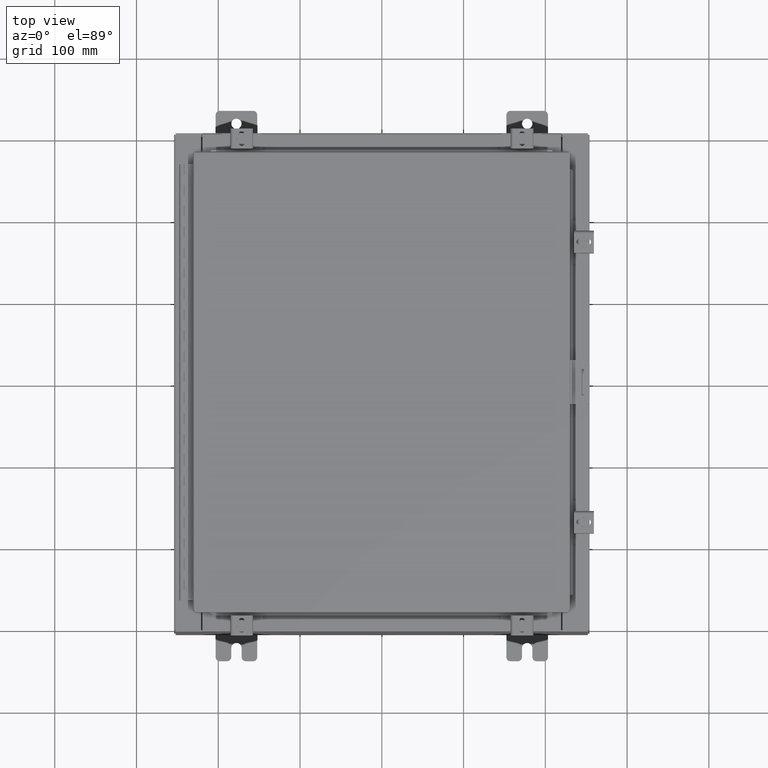
[diagram: clean part render]
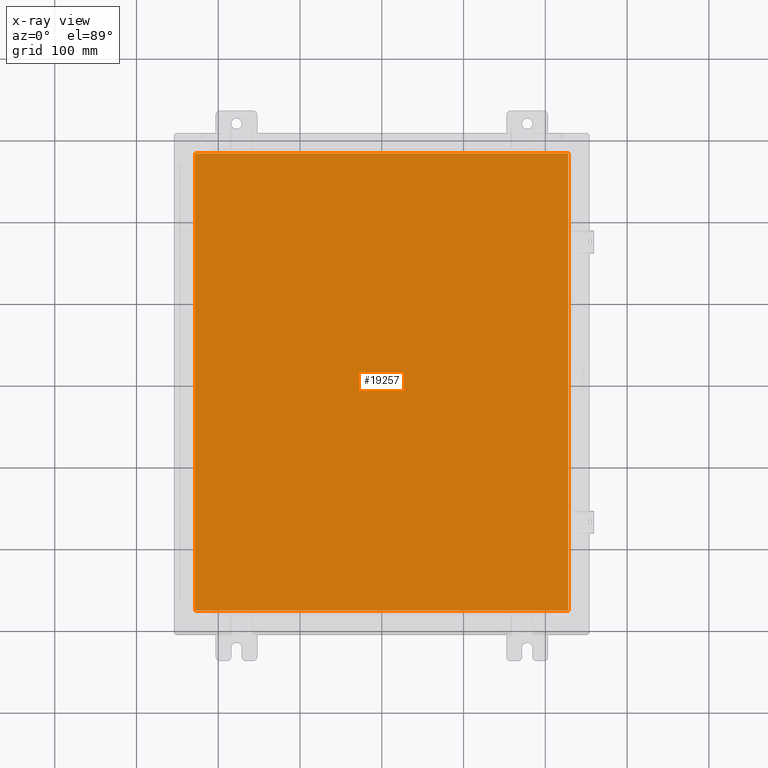
[diagram: x-ray — body ghosted, one internal face saturated and labeled with its STEP entity id]
A machine part, top view, then the same camera in x-ray: the body is ghosted and one INTERNAL B-rep face — a face not visible from any outside direction — is saturated and labeled: STEP entity #19257.
In plain terms, the highlighted planar face has unit normal (0, 0, -1).
Its self-contained STEP definition (entity closure, byte-faithful):
#2543 = PLANE ( 'NONE',  #18289 ) ;
#2843 = VERTEX_POINT ( 'NONE', #10066 ) ;
#3978 = CARTESIAN_POINT ( 'NONE',  ( -8.990299999999999500, 11.00630000000000100, -0.07470000000000019700 ) ) ;
#4054 = ORIENTED_EDGE ( 'NONE', *, *, #28964, .F. ) ;
#5021 = DIRECTION ( 'NONE',  ( -1.000000000000000000, -0.0000000000000000000, -0.0000000000000000000 ) ) ;
#7363 = DIRECTION ( 'NONE',  ( 0.0000000000000000000, 0.0000000000000000000, -1.000000000000000000 ) ) ;
#8384 = VECTOR ( 'NONE', #15093, 39.37007874015748100 ) ;
#8718 = CARTESIAN_POINT ( 'NONE',  ( 8.990299999999997700, 11.00630000000000000, -0.07470000000000000300 ) ) ;
#10066 = CARTESIAN_POINT ( 'NONE',  ( 8.990299999999997700, -11.00630000000000000, -0.07470000000000000300 ) ) ;
#10194 = CARTESIAN_POINT ( 'NONE',  ( -8.990299999999999500, 11.00630000000000000, -0.07470000000000000300 ) ) ;
#10384 = EDGE_CURVE ( 'NONE', #2843, #14885, #23056, .T. ) ;
#11754 = EDGE_CURVE ( 'NONE', #25307, #2843, #31586, .T. ) ;
#12035 = EDGE_LOOP ( 'NONE', ( #13331, #32725, #4054, #20430 ) ) ;
#13322 = EDGE_CURVE ( 'NONE', #14885, #20152, #26292, .T. ) ;
#13331 = ORIENTED_EDGE ( 'NONE', *, *, #10384, .F. ) ;
#14885 = VERTEX_POINT ( 'NONE', #8718 ) ;
#15081 = DIRECTION ( 'NONE',  ( -1.000000000000000000, 0.0000000000000000000, -0.0000000000000000000 ) ) ;
#15093 = DIRECTION ( 'NONE',  ( 0.0000000000000000000, -1.000000000000000000, 0.0000000000000000000 ) ) ;
#18019 = FACE_OUTER_BOUND ( 'NONE', #12035, .T. ) ;
#18289 = AXIS2_PLACEMENT_3D ( 'NONE', #28123, #7363, #15081 ) ;
#19257 = ADVANCED_FACE ( 'NONE', ( #18019 ), #2543, .T. ) ;
#20152 = VERTEX_POINT ( 'NONE', #10194 ) ;
#20430 = ORIENTED_EDGE ( 'NONE', *, *, #13322, .F. ) ;
#21617 = CARTESIAN_POINT ( 'NONE',  ( 8.990299999999997700, -11.00630000000000000, -0.07470000000000019700 ) ) ;
#22622 = VECTOR ( 'NONE', #30478, 39.37007874015748100 ) ;
#23056 = LINE ( 'NONE', #21617, #22622 ) ;
#24029 = VECTOR ( 'NONE', #31147, 39.37007874015748100 ) ;
#25307 = VERTEX_POINT ( 'NONE', #31305 ) ;
#26292 = LINE ( 'NONE', #27731, #31122 ) ;
#27731 = CARTESIAN_POINT ( 'NONE',  ( 8.990299999999999500, 11.00630000000000000, -0.07470000000000019700 ) ) ;
#28123 = CARTESIAN_POINT ( 'NONE',  ( 0.0000000000000000000, 0.0000000000000000000, -0.07470000000000000300 ) ) ;
#28964 = EDGE_CURVE ( 'NONE', #20152, #25307, #29960, .T. ) ;
#29960 = LINE ( 'NONE', #3978, #8384 ) ;
#30478 = DIRECTION ( 'NONE',  ( 0.0000000000000000000, 1.000000000000000000, 0.0000000000000000000 ) ) ;
#31122 = VECTOR ( 'NONE', #5021, 39.37007874015748100 ) ;
#31147 = DIRECTION ( 'NONE',  ( 1.000000000000000000, -0.0000000000000000000, -0.0000000000000000000 ) ) ;
#31305 = CARTESIAN_POINT ( 'NONE',  ( -8.990299999999997700, -11.00630000000000100, -0.07470000000000000300 ) ) ;
#31581 = CARTESIAN_POINT ( 'NONE',  ( -8.990300000000001300, -11.00630000000000100, -0.07469999999999910000 ) ) ;
#31586 = LINE ( 'NONE', #31581, #24029 ) ;
#32725 = ORIENTED_EDGE ( 'NONE', *, *, #11754, .F. ) ;